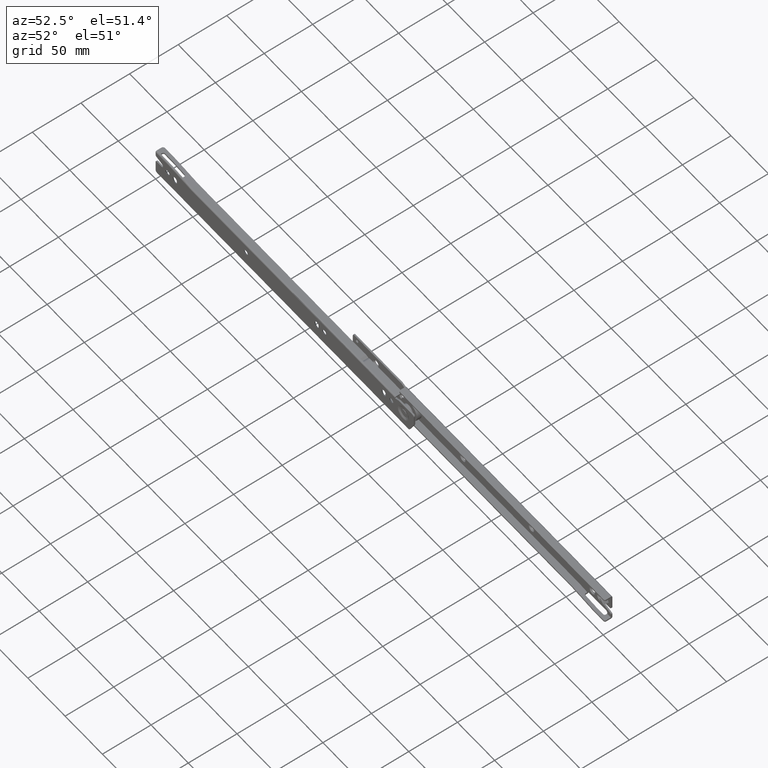
[diagram: clean part render]
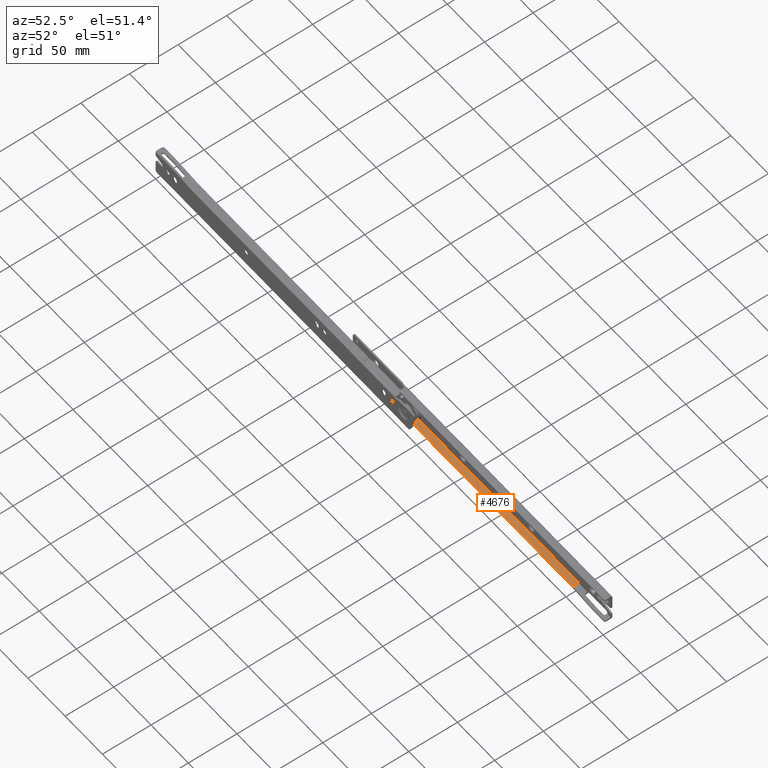
[diagram: same view with one face highlighted and labeled with its STEP entity id]
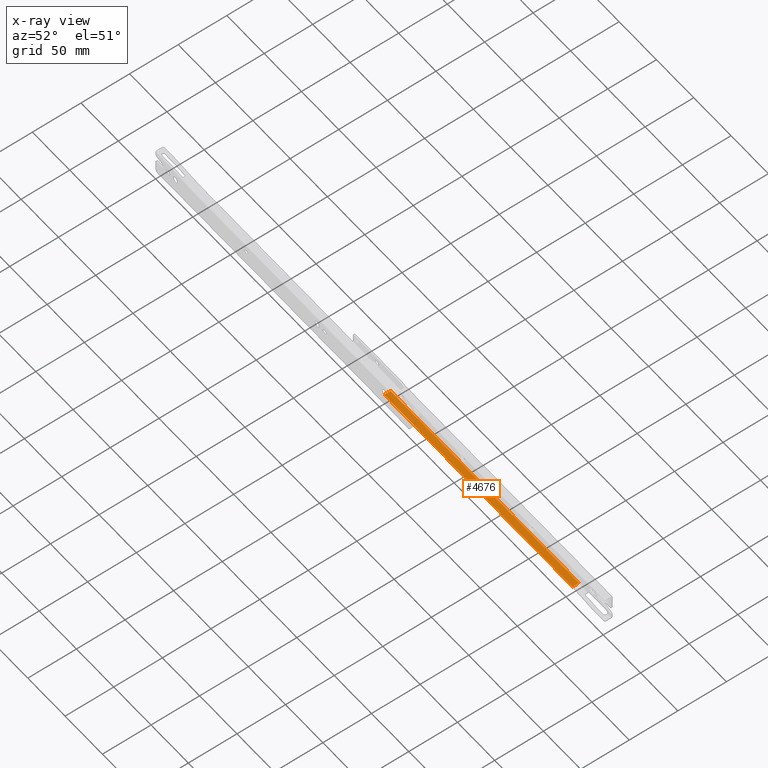
[diagram: x-ray of the same camera — body ghosted, the highlighted face saturated]
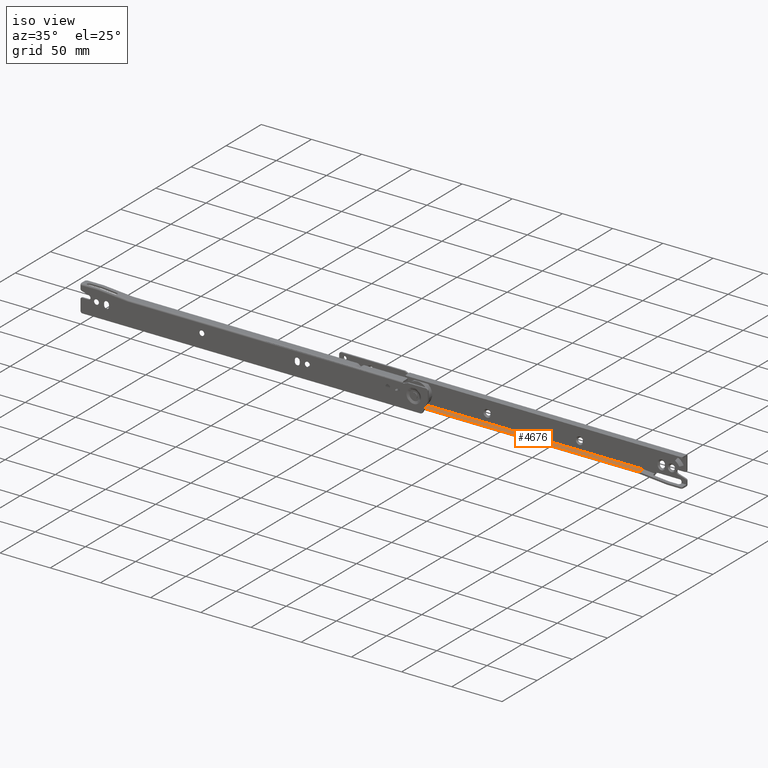
[diagram: same view with one face highlighted and labeled with its STEP entity id]
A machine part, auxiliary view. The second image highlights one B-rep face of the part: STEP entity #4676.
The next image is the same camera in x-ray: the body ghosted, the highlighted face saturated — about 0% of this face is hidden behind the body in this view.
A second angle (iso view) of the same face is appended — the face is thin or edge-on in the first view.
In plain terms, the highlighted face is a freeform B-spline surface patch.
Its self-contained STEP definition (entity closure, byte-faithful):
#2610=CARTESIAN_POINT('',(207.0,4.499999999999775,3.0));
#2611=VERTEX_POINT('',#2610);
#2617=CARTESIAN_POINT('',(205.500000000000000,5.999999999999780,3.0));
#2618=VERTEX_POINT('',#2617);
#2619=CARTESIAN_POINT('',(205.500000000000000,5.999999999999780,3.0));
#2620=CARTESIAN_POINT('',(205.499999999999970,4.499999999999781,3.0));
#2621=CARTESIAN_POINT('',(207.0,4.499999999999781,3.0));
#2629=(BOUNDED_CURVE()B_SPLINE_CURVE(2,(#2619,#2620,#2621),.UNSPECIFIED.,.F.,.U.)CURVE()GEOMETRIC_REPRESENTATION_ITEM()QUASI_UNIFORM_CURVE()RATIONAL_B_SPLINE_CURVE((1.0,0.707106781186548,1.0))REPRESENTATION_ITEM(''));
#2630=EDGE_CURVE('',#2618,#2611,#2629,.T.);
#2964=CARTESIAN_POINT('',(205.500000000000000,11.0,3.0));
#2965=VERTEX_POINT('',#2964);
#2966=CARTESIAN_POINT('',(205.500000000000000,5.999999999999780,3.0));
#2967=CARTESIAN_POINT('',(205.500000000000000,11.0,3.0));
#2968=QUASI_UNIFORM_CURVE('',1,(#2966,#2967),.UNSPECIFIED.,.F.,.U.);
#2969=EDGE_CURVE('',#2618,#2965,#2968,.T.);
#4562=CARTESIAN_POINT('',(458.066830999999980,4.499999999999725,3.0));
#4563=VERTEX_POINT('',#4562);
#4564=CARTESIAN_POINT('',(207.0,4.499999999999775,3.0));
#4565=CARTESIAN_POINT('',(458.066830999999980,4.499999999999725,3.0));
#4566=QUASI_UNIFORM_CURVE('',1,(#4564,#4565),.UNSPECIFIED.,.F.,.U.);
#4567=EDGE_CURVE('',#2611,#4563,#4566,.T.);
#4641=CARTESIAN_POINT('',(458.066830999999980,11.0,3.0));
#4642=VERTEX_POINT('',#4641);
#4648=CARTESIAN_POINT('',(458.066830999999980,4.499999999999725,3.0));
#4649=CARTESIAN_POINT('',(458.066830999999980,11.0,3.0));
#4650=QUASI_UNIFORM_CURVE('',1,(#4648,#4649),.UNSPECIFIED.,.F.,.U.);
#4651=EDGE_CURVE('',#4563,#4642,#4650,.T.);
#4660=CARTESIAN_POINT('',(192.884287281073510,4.175325012597972,3.0));
#4661=CARTESIAN_POINT('',(470.682550493296790,4.175325012597972,3.0));
#4662=CARTESIAN_POINT('',(192.884287281073510,11.324675161745340,3.0));
#4663=CARTESIAN_POINT('',(470.682550493296790,11.324675161745340,3.0));
#4664=B_SPLINE_SURFACE_WITH_KNOTS('',1,1,((#4660,#4662),(#4661,#4663)),.UNSPECIFIED.,.F.,.F.,.U.,(2,2),(2,2),(0.0,277.798263212223280),(0.0,7.149350149147366),.UNSPECIFIED.);
#4665=ORIENTED_EDGE('',*,*,#2969,.F.);
#4666=ORIENTED_EDGE('',*,*,#2630,.T.);
#4667=ORIENTED_EDGE('',*,*,#4567,.T.);
#4668=ORIENTED_EDGE('',*,*,#4651,.T.);
#4669=CARTESIAN_POINT('',(205.500000000000000,11.0,3.0));
#4670=CARTESIAN_POINT('',(458.066830999999980,11.0,3.0));
#4671=QUASI_UNIFORM_CURVE('',1,(#4669,#4670),.UNSPECIFIED.,.F.,.U.);
#4672=EDGE_CURVE('',#2965,#4642,#4671,.T.);
#4673=ORIENTED_EDGE('',*,*,#4672,.F.);
#4674=EDGE_LOOP('',(#4665,#4666,#4667,#4668,#4673));
#4675=FACE_OUTER_BOUND('',#4674,.T.);
#4676=ADVANCED_FACE('',(#4675),#4664,.T.);